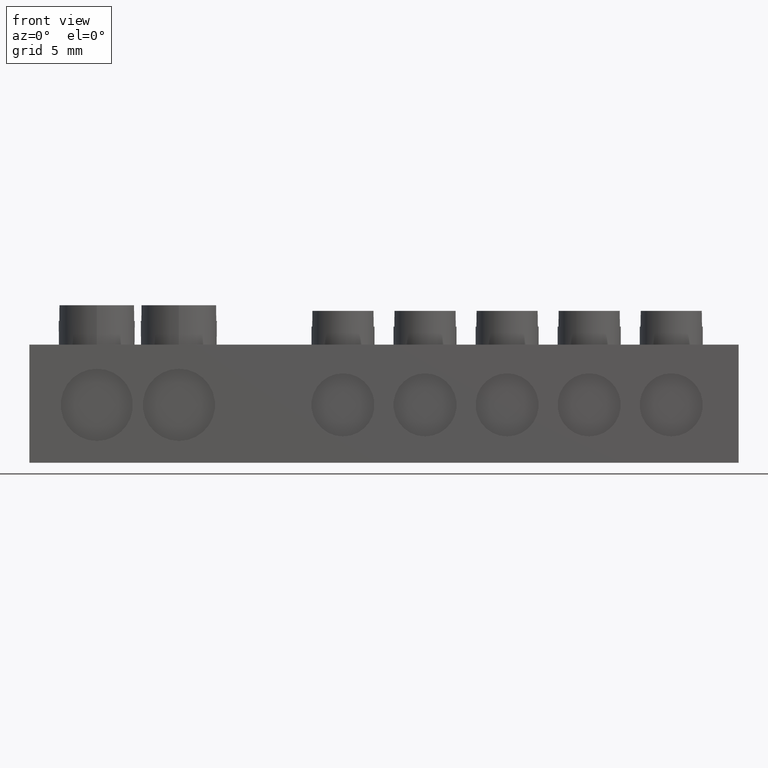
[diagram: clean part render]
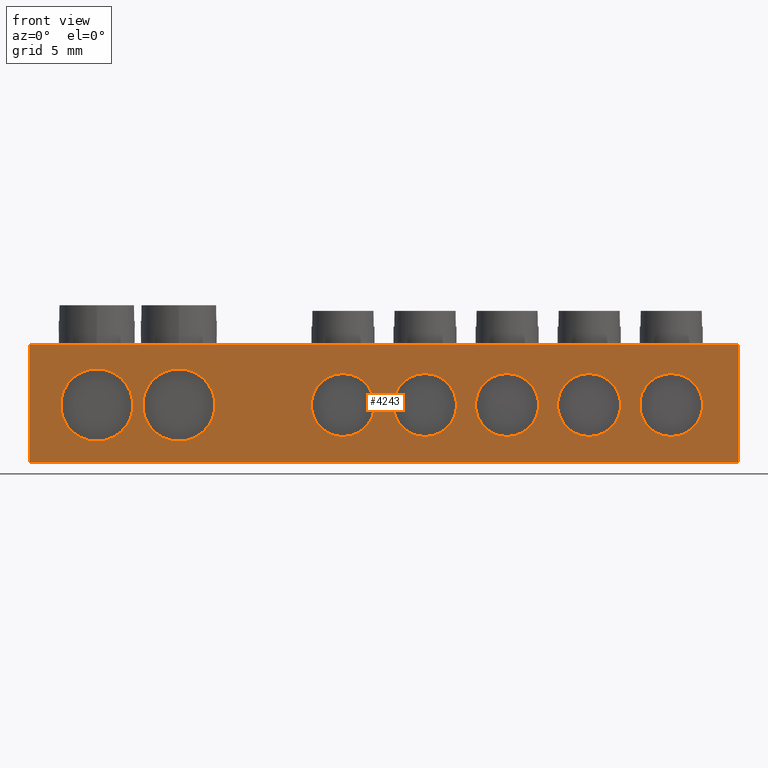
[diagram: same view with one face highlighted and labeled with its STEP entity id]
A machine part, front view. The second image highlights one B-rep face of the part: STEP entity #4243.
In plain terms, the highlighted planar face has unit normal (0, 1, 0).
Its self-contained STEP definition (entity closure, byte-faithful):
#2 = EDGE_CURVE ( 'NONE', #681, #710, #2580, .T. ) ;
#3 = EDGE_CURVE ( 'NONE', #674, #673, #2587, .T. ) ;
#25 = EDGE_CURVE ( 'NONE', #718, #712, #2623, .T. ) ;
#36 = EDGE_CURVE ( 'NONE', #715, #696, #2629, .T. ) ;
#63 = EDGE_LOOP ( 'NONE', ( #523, #516 ) ) ;
#66 = EDGE_LOOP ( 'NONE', ( #530, #507 ) ) ;
#77 = EDGE_LOOP ( 'NONE', ( #481, #528 ) ) ;
#78 = EDGE_LOOP ( 'NONE', ( #503, #506, #479, #509 ) ) ;
#79 = EDGE_LOOP ( 'NONE', ( #525, #520 ) ) ;
#81 = EDGE_LOOP ( 'NONE', ( #477, #485 ) ) ;
#82 = EDGE_LOOP ( 'NONE', ( #519, #478 ) ) ;
#89 = EDGE_LOOP ( 'NONE', ( #513, #515 ) ) ;
#477 = ORIENTED_EDGE ( 'NONE', *, *, #25, .F. ) ;
#478 = ORIENTED_EDGE ( 'NONE', *, *, #1318, .F. ) ;
#479 = ORIENTED_EDGE ( 'NONE', *, *, #2994, .F. ) ;
#481 = ORIENTED_EDGE ( 'NONE', *, *, #2987, .F. ) ;
#485 = ORIENTED_EDGE ( 'NONE', *, *, #1346, .F. ) ;
#503 = ORIENTED_EDGE ( 'NONE', *, *, #3000, .F. ) ;
#506 = ORIENTED_EDGE ( 'NONE', *, *, #2997, .F. ) ;
#507 = ORIENTED_EDGE ( 'NONE', *, *, #4296, .F. ) ;
#509 = ORIENTED_EDGE ( 'NONE', *, *, #3001, .F. ) ;
#513 = ORIENTED_EDGE ( 'NONE', *, *, #2988, .F. ) ;
#515 = ORIENTED_EDGE ( 'NONE', *, *, #1354, .F. ) ;
#516 = ORIENTED_EDGE ( 'NONE', *, *, #4285, .F. ) ;
#519 = ORIENTED_EDGE ( 'NONE', *, *, #2, .F. ) ;
#520 = ORIENTED_EDGE ( 'NONE', *, *, #1352, .F. ) ;
#523 = ORIENTED_EDGE ( 'NONE', *, *, #2986, .F. ) ;
#525 = ORIENTED_EDGE ( 'NONE', *, *, #36, .F. ) ;
#528 = ORIENTED_EDGE ( 'NONE', *, *, #1314, .F. ) ;
#530 = ORIENTED_EDGE ( 'NONE', *, *, #3, .F. ) ;
#607 = VERTEX_POINT ( 'NONE', #2154 ) ;
#652 = VERTEX_POINT ( 'NONE', #2169 ) ;
#673 = VERTEX_POINT ( 'NONE', #2214 ) ;
#674 = VERTEX_POINT ( 'NONE', #2262 ) ;
#681 = VERTEX_POINT ( 'NONE', #2213 ) ;
#684 = VERTEX_POINT ( 'NONE', #2228 ) ;
#694 = VERTEX_POINT ( 'NONE', #2239 ) ;
#696 = VERTEX_POINT ( 'NONE', #2217 ) ;
#710 = VERTEX_POINT ( 'NONE', #2225 ) ;
#712 = VERTEX_POINT ( 'NONE', #2248 ) ;
#715 = VERTEX_POINT ( 'NONE', #2218 ) ;
#718 = VERTEX_POINT ( 'NONE', #2303 ) ;
#721 = VERTEX_POINT ( 'NONE', #2317 ) ;
#722 = VERTEX_POINT ( 'NONE', #2300 ) ;
#726 = VERTEX_POINT ( 'NONE', #2281 ) ;
#748 = VERTEX_POINT ( 'NONE', #2302 ) ;
#769 = VERTEX_POINT ( 'NONE', #2273 ) ;
#771 = VERTEX_POINT ( 'NONE', #2287 ) ;
#1198 = AXIS2_PLACEMENT_3D ( 'NONE', #4427, #4392, #4404 ) ;
#1229 = CIRCLE ( 'NONE', #1254, 2.400000000000000800 ) ;
#1254 = AXIS2_PLACEMENT_3D ( 'NONE', #4588, #4568, #4567 ) ;
#1262 = AXIS2_PLACEMENT_3D ( 'NONE', #4538, #4545, #4524 ) ;
#1265 = CIRCLE ( 'NONE', #1262, 2.400000000000000800 ) ;
#1314 = EDGE_CURVE ( 'NONE', #722, #694, #2670, .T. ) ;
#1318 = EDGE_CURVE ( 'NONE', #710, #681, #2657, .T. ) ;
#1346 = EDGE_CURVE ( 'NONE', #712, #718, #2737, .T. ) ;
#1352 = EDGE_CURVE ( 'NONE', #696, #715, #2732, .T. ) ;
#1354 = EDGE_CURVE ( 'NONE', #721, #684, #2746, .T. ) ;
#1366 = DIRECTION ( 'NONE',  ( 0.0000000000000000000, 0.0000000000000000000, -1.000000000000000000 ) ) ;
#1369 = DIRECTION ( 'NONE',  ( -0.0000000000000000000, -1.000000000000000000, -0.0000000000000000000 ) ) ;
#1379 = DIRECTION ( 'NONE',  ( -0.0000000000000000000, -1.000000000000000000, -0.0000000000000000000 ) ) ;
#1382 = CARTESIAN_POINT ( 'NONE',  ( 42.72000000000000600, 0.0000000000000000000, 4.399999999999984400 ) ) ;
#1385 = DIRECTION ( 'NONE',  ( 0.0000000000000000000, 0.0000000000000000000, -1.000000000000000000 ) ) ;
#1399 = CARTESIAN_POINT ( 'NONE',  ( 48.97000000000000600, 0.0000000000000000000, 4.399999999999999500 ) ) ;
#1832 = DIRECTION ( 'NONE',  ( 0.0000000000000000000, 0.0000000000000000000, -1.000000000000000000 ) ) ;
#1833 = CARTESIAN_POINT ( 'NONE',  ( 36.47000000000000600, 0.0000000000000000000, 4.399999999999970200 ) ) ;
#1853 = DIRECTION ( 'NONE',  ( -0.0000000000000000000, -1.000000000000000000, -0.0000000000000000000 ) ) ;
#1878 = CARTESIAN_POINT ( 'NONE',  ( 11.48000000000000000, 0.0000000000000000000, 4.399999999999999500 ) ) ;
#1879 = DIRECTION ( 'NONE',  ( -0.0000000000000000000, -1.000000000000000000, -0.0000000000000000000 ) ) ;
#1881 = DIRECTION ( 'NONE',  ( 0.0000000000000000000, 0.0000000000000000000, -1.000000000000000000 ) ) ;
#1908 = CARTESIAN_POINT ( 'NONE',  ( 30.22000000000001000, 0.0000000000000000000, 4.399999999999955900 ) ) ;
#1910 = DIRECTION ( 'NONE',  ( -0.0000000000000000000, -1.000000000000000000, -0.0000000000000000000 ) ) ;
#1947 = DIRECTION ( 'NONE',  ( 0.0000000000000000000, 0.0000000000000000000, -1.000000000000000000 ) ) ;
#1955 = CARTESIAN_POINT ( 'NONE',  ( 42.72000000000000600, 0.0000000000000000000, 4.399999999999984400 ) ) ;
#1963 = DIRECTION ( 'NONE',  ( -0.0000000000000000000, -1.000000000000000000, -0.0000000000000000000 ) ) ;
#1964 = DIRECTION ( 'NONE',  ( 0.0000000000000000000, 0.0000000000000000000, -1.000000000000000000 ) ) ;
#2154 = CARTESIAN_POINT ( 'NONE',  ( 23.97000000000001300, 0.0000000000000000000, 1.999999999999940700 ) ) ;
#2169 = CARTESIAN_POINT ( 'NONE',  ( 23.97000000000001300, 0.0000000000000000000, 6.799999999999941200 ) ) ;
#2213 = CARTESIAN_POINT ( 'NONE',  ( 11.48000000000000000, 0.0000000000000000000, 1.650000000000001200 ) ) ;
#2214 = CARTESIAN_POINT ( 'NONE',  ( 36.47000000000000600, 0.0000000000000000000, 6.799999999999971400 ) ) ;
#2217 = CARTESIAN_POINT ( 'NONE',  ( 42.72000000000000600, 0.0000000000000000000, 6.799999999999984700 ) ) ;
#2218 = CARTESIAN_POINT ( 'NONE',  ( 42.72000000000000600, 0.0000000000000000000, 1.999999999999984000 ) ) ;
#2225 = CARTESIAN_POINT ( 'NONE',  ( 11.48000000000000000, 0.0000000000000000000, 7.149999999999997700 ) ) ;
#2228 = CARTESIAN_POINT ( 'NONE',  ( 48.97000000000000600, 0.0000000000000000000, 1.999999999999998700 ) ) ;
#2239 = CARTESIAN_POINT ( 'NONE',  ( 5.230000000000000400, 0.0000000000000000000, 1.650000000000001200 ) ) ;
#2248 = CARTESIAN_POINT ( 'NONE',  ( 30.22000000000001000, 0.0000000000000000000, 6.799999999999957200 ) ) ;
#2262 = CARTESIAN_POINT ( 'NONE',  ( 36.47000000000000600, 0.0000000000000000000, 1.999999999999969400 ) ) ;
#2273 = CARTESIAN_POINT ( 'NONE',  ( 54.10000000000000100, 0.0000000000000000000, 0.0000000000000000000 ) ) ;
#2281 = CARTESIAN_POINT ( 'NONE',  ( 54.10000000000000100, 0.0000000000000000000, 9.000000000000001800 ) ) ;
#2287 = CARTESIAN_POINT ( 'NONE',  ( 0.1000000000000000100, 0.0000000000000000000, 9.000000000000001800 ) ) ;
#2300 = CARTESIAN_POINT ( 'NONE',  ( 5.230000000000000400, 0.0000000000000000000, 7.149999999999997700 ) ) ;
#2302 = CARTESIAN_POINT ( 'NONE',  ( 0.1000000000000000100, 0.0000000000000000000, 0.0000000000000000000 ) ) ;
#2303 = CARTESIAN_POINT ( 'NONE',  ( 30.22000000000001000, 0.0000000000000000000, 1.999999999999955400 ) ) ;
#2317 = CARTESIAN_POINT ( 'NONE',  ( 48.97000000000000600, 0.0000000000000000000, 6.800000000000000700 ) ) ;
#2421 = DIRECTION ( 'NONE',  ( -0.0000000000000000000, -1.000000000000000000, -0.0000000000000000000 ) ) ;
#2430 = DIRECTION ( 'NONE',  ( 0.0000000000000000000, 0.0000000000000000000, -1.000000000000000000 ) ) ;
#2436 = CARTESIAN_POINT ( 'NONE',  ( 5.230000000000000400, 0.0000000000000000000, 4.399999999999999500 ) ) ;
#2437 = DIRECTION ( 'NONE',  ( 0.0000000000000000000, 0.0000000000000000000, -1.000000000000000000 ) ) ;
#2439 = DIRECTION ( 'NONE',  ( -0.0000000000000000000, -1.000000000000000000, -0.0000000000000000000 ) ) ;
#2456 = CARTESIAN_POINT ( 'NONE',  ( 11.48000000000000000, 0.0000000000000000000, 4.399999999999999500 ) ) ;
#2508 = DIRECTION ( 'NONE',  ( 0.0000000000000000000, 0.0000000000000000000, -1.000000000000000000 ) ) ;
#2514 = CARTESIAN_POINT ( 'NONE',  ( 30.22000000000001000, 0.0000000000000000000, 4.399999999999955900 ) ) ;
#2515 = DIRECTION ( 'NONE',  ( -0.0000000000000000000, -1.000000000000000000, -0.0000000000000000000 ) ) ;
#2546 = VECTOR ( 'NONE', #3485, 1000.000000000000000 ) ;
#2553 = VECTOR ( 'NONE', #3498, 1000.000000000000000 ) ;
#2556 = AXIS2_PLACEMENT_3D ( 'NONE', #1833, #1879, #1881 ) ;
#2575 = AXIS2_PLACEMENT_3D ( 'NONE', #1878, #1853, #1832 ) ;
#2580 = CIRCLE ( 'NONE', #2575, 2.749999999999998200 ) ;
#2587 = CIRCLE ( 'NONE', #2556, 2.400000000000000800 ) ;
#2623 = CIRCLE ( 'NONE', #2641, 2.400000000000000800 ) ;
#2629 = CIRCLE ( 'NONE', #2634, 2.400000000000000800 ) ;
#2634 = AXIS2_PLACEMENT_3D ( 'NONE', #1955, #1963, #1947 ) ;
#2641 = AXIS2_PLACEMENT_3D ( 'NONE', #1908, #1910, #1964 ) ;
#2657 = CIRCLE ( 'NONE', #2669, 2.749999999999998200 ) ;
#2659 = AXIS2_PLACEMENT_3D ( 'NONE', #2436, #2439, #2437 ) ;
#2669 = AXIS2_PLACEMENT_3D ( 'NONE', #2456, #2421, #2430 ) ;
#2670 = CIRCLE ( 'NONE', #2659, 2.749999999999998200 ) ;
#2730 = AXIS2_PLACEMENT_3D ( 'NONE', #2514, #2515, #2508 ) ;
#2732 = CIRCLE ( 'NONE', #2752, 2.400000000000000800 ) ;
#2737 = CIRCLE ( 'NONE', #2730, 2.400000000000000800 ) ;
#2746 = CIRCLE ( 'NONE', #2748, 2.400000000000000800 ) ;
#2748 = AXIS2_PLACEMENT_3D ( 'NONE', #1399, #1369, #1385 ) ;
#2752 = AXIS2_PLACEMENT_3D ( 'NONE', #1382, #1379, #1366 ) ;
#2829 = CIRCLE ( 'NONE', #2848, 2.400000000000000800 ) ;
#2832 = CIRCLE ( 'NONE', #2853, 2.749999999999998200 ) ;
#2836 = CIRCLE ( 'NONE', #2866, 2.400000000000000800 ) ;
#2848 = AXIS2_PLACEMENT_3D ( 'NONE', #3447, #3453, #3445 ) ;
#2853 = AXIS2_PLACEMENT_3D ( 'NONE', #3439, #3436, #3446 ) ;
#2866 = AXIS2_PLACEMENT_3D ( 'NONE', #3426, #3415, #3442 ) ;
#2873 = VECTOR ( 'NONE', #3437, 1000.000000000000000 ) ;
#2874 = VECTOR ( 'NONE', #3478, 1000.000000000000000 ) ;
#2986 = EDGE_CURVE ( 'NONE', #607, #652, #2829, .T. ) ;
#2987 = EDGE_CURVE ( 'NONE', #694, #722, #2832, .T. ) ;
#2988 = EDGE_CURVE ( 'NONE', #684, #721, #2836, .T. ) ;
#2994 = EDGE_CURVE ( 'NONE', #748, #771, #3431, .T. ) ;
#2997 = EDGE_CURVE ( 'NONE', #771, #726, #3463, .T. ) ;
#3000 = EDGE_CURVE ( 'NONE', #726, #769, #3483, .T. ) ;
#3001 = EDGE_CURVE ( 'NONE', #769, #748, #3455, .T. ) ;
#3415 = DIRECTION ( 'NONE',  ( -0.0000000000000000000, -1.000000000000000000, -0.0000000000000000000 ) ) ;
#3426 = CARTESIAN_POINT ( 'NONE',  ( 48.97000000000000600, 0.0000000000000000000, 4.399999999999999500 ) ) ;
#3431 = LINE ( 'NONE', #3441, #2873 ) ;
#3436 = DIRECTION ( 'NONE',  ( -0.0000000000000000000, -1.000000000000000000, -0.0000000000000000000 ) ) ;
#3437 = DIRECTION ( 'NONE',  ( 0.0000000000000000000, 0.0000000000000000000, 1.000000000000000000 ) ) ;
#3439 = CARTESIAN_POINT ( 'NONE',  ( 5.230000000000000400, 0.0000000000000000000, 4.399999999999999500 ) ) ;
#3441 = CARTESIAN_POINT ( 'NONE',  ( 0.1000000000000000100, 0.0000000000000000000, 9.000000000000001800 ) ) ;
#3442 = DIRECTION ( 'NONE',  ( 0.0000000000000000000, 0.0000000000000000000, -1.000000000000000000 ) ) ;
#3445 = DIRECTION ( 'NONE',  ( 0.0000000000000000000, 0.0000000000000000000, -1.000000000000000000 ) ) ;
#3446 = DIRECTION ( 'NONE',  ( 0.0000000000000000000, 0.0000000000000000000, -1.000000000000000000 ) ) ;
#3447 = CARTESIAN_POINT ( 'NONE',  ( 23.97000000000001300, 0.0000000000000000000, 4.399999999999940800 ) ) ;
#3453 = DIRECTION ( 'NONE',  ( -0.0000000000000000000, -1.000000000000000000, -0.0000000000000000000 ) ) ;
#3455 = LINE ( 'NONE', #3495, #2553 ) ;
#3463 = LINE ( 'NONE', #3479, #2874 ) ;
#3478 = DIRECTION ( 'NONE',  ( 1.000000000000000000, 0.0000000000000000000, -0.0000000000000000000 ) ) ;
#3479 = CARTESIAN_POINT ( 'NONE',  ( 0.0000000000000000000, 0.0000000000000000000, 9.000000000000001800 ) ) ;
#3483 = LINE ( 'NONE', #3484, #2546 ) ;
#3484 = CARTESIAN_POINT ( 'NONE',  ( 54.10000000000000100, 0.0000000000000000000, 9.000000000000001800 ) ) ;
#3485 = DIRECTION ( 'NONE',  ( 0.0000000000000000000, 0.0000000000000000000, -1.000000000000000000 ) ) ;
#3495 = CARTESIAN_POINT ( 'NONE',  ( 0.0000000000000000000, 0.0000000000000000000, 0.0000000000000000000 ) ) ;
#3498 = DIRECTION ( 'NONE',  ( -1.000000000000000000, -0.0000000000000000000, 0.0000000000000000000 ) ) ;
#4243 = ADVANCED_FACE ( 'NONE', ( #4421, #4434, #4394, #4400, #4416, #4425, #4398, #4424 ), #4415, .F. ) ;
#4285 = EDGE_CURVE ( 'NONE', #652, #607, #1265, .T. ) ;
#4296 = EDGE_CURVE ( 'NONE', #673, #674, #1229, .T. ) ;
#4392 = DIRECTION ( 'NONE',  ( 0.0000000000000000000, 1.000000000000000000, 0.0000000000000000000 ) ) ;
#4394 = FACE_BOUND ( 'NONE', #82, .T. ) ;
#4398 = FACE_BOUND ( 'NONE', #81, .T. ) ;
#4400 = FACE_BOUND ( 'NONE', #89, .T. ) ;
#4404 = DIRECTION ( 'NONE',  ( 0.0000000000000000000, -0.0000000000000000000, 1.000000000000000000 ) ) ;
#4415 = PLANE ( 'NONE',  #1198 ) ;
#4416 = FACE_BOUND ( 'NONE', #79, .T. ) ;
#4421 = FACE_OUTER_BOUND ( 'NONE', #78, .T. ) ;
#4424 = FACE_BOUND ( 'NONE', #63, .T. ) ;
#4425 = FACE_BOUND ( 'NONE', #66, .T. ) ;
#4427 = CARTESIAN_POINT ( 'NONE',  ( 0.0000000000000000000, 0.0000000000000000000, 9.000000000000001800 ) ) ;
#4434 = FACE_BOUND ( 'NONE', #77, .T. ) ;
#4524 = DIRECTION ( 'NONE',  ( 0.0000000000000000000, 0.0000000000000000000, -1.000000000000000000 ) ) ;
#4538 = CARTESIAN_POINT ( 'NONE',  ( 23.97000000000001300, 0.0000000000000000000, 4.399999999999940800 ) ) ;
#4545 = DIRECTION ( 'NONE',  ( -0.0000000000000000000, -1.000000000000000000, -0.0000000000000000000 ) ) ;
#4567 = DIRECTION ( 'NONE',  ( 0.0000000000000000000, 0.0000000000000000000, -1.000000000000000000 ) ) ;
#4568 = DIRECTION ( 'NONE',  ( -0.0000000000000000000, -1.000000000000000000, -0.0000000000000000000 ) ) ;
#4588 = CARTESIAN_POINT ( 'NONE',  ( 36.47000000000000600, 0.0000000000000000000, 4.399999999999970200 ) ) ;